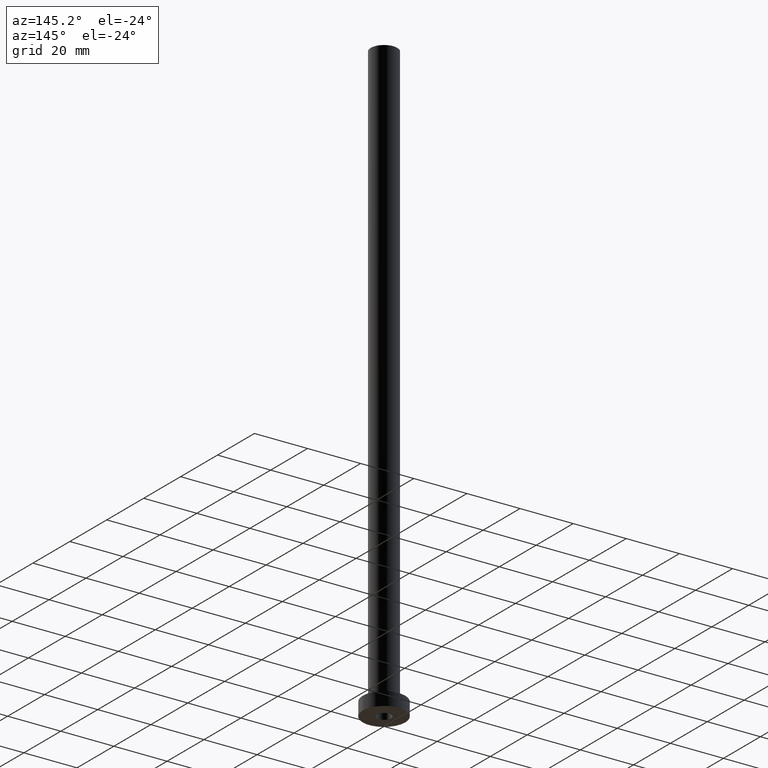
[diagram: clean part render]
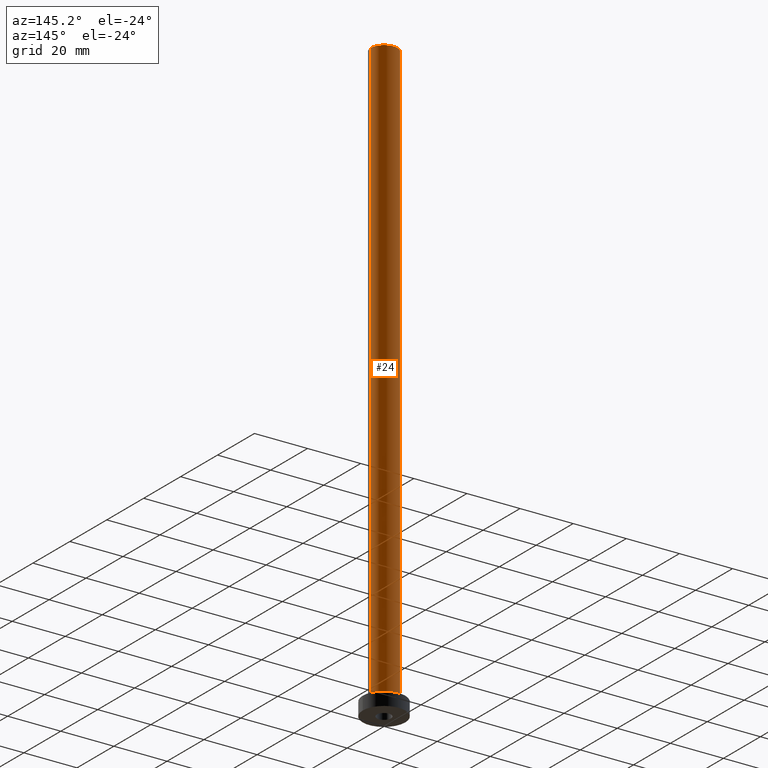
[diagram: same view with one face highlighted and labeled with its STEP entity id]
A machine part, auxiliary view. The second image highlights one B-rep face of the part: STEP entity #24.
In plain terms, the highlighted cylindrical surface (edge-blend (fillet) strip) has radius 5 mm, axis along (-0, -0, -1).
Its self-contained STEP definition (entity closure, byte-faithful):
#8 = DIRECTION ( 'NONE',  ( -0.000000000000000000, -0.000000000000000000, -1.000000000000000000 ) ) ;
#10 = CYLINDRICAL_SURFACE ( 'NONE', #221, 5.000000000000000000 ) ;
#18 = EDGE_CURVE ( 'NONE', #355, #313, #265, .T. ) ;
#21 = AXIS2_PLACEMENT_3D ( 'NONE', #437, #405, #190 ) ;
#24 = ADVANCED_FACE ( 'NONE', ( #118 ), #10, .T. ) ;
#46 = DIRECTION ( 'NONE',  ( -0.000000000000000000, -0.000000000000000000, -1.000000000000000000 ) ) ;
#52 = LINE ( 'NONE', #186, #103 ) ;
#67 = VERTEX_POINT ( 'NONE', #363 ) ;
#71 = CARTESIAN_POINT ( 'NONE',  ( -5.000000000000000000, 0.000000000000000000, 5.500000000000005329 ) ) ;
#78 = CARTESIAN_POINT ( 'NONE',  ( -5.000000000000000000, 0.000000000000000000, 225.0000000000000000 ) ) ;
#92 = EDGE_CURVE ( 'NONE', #419, #67, #52, .T. ) ;
#103 = VECTOR ( 'NONE', #46, 1000.000000000000000 ) ;
#118 = FACE_OUTER_BOUND ( 'NONE', #181, .T. ) ;
#122 = CARTESIAN_POINT ( 'NONE',  ( 0.000000000000000000, 0.000000000000000000, 225.0000000000000000 ) ) ;
#135 = EDGE_CURVE ( 'NONE', #67, #313, #208, .T. ) ;
#152 = DIRECTION ( 'NONE',  ( -1.000000000000000000, 0.000000000000000000, 0.000000000000000000 ) ) ;
#164 = AXIS2_PLACEMENT_3D ( 'NONE', #178, #215, #392 ) ;
#178 = CARTESIAN_POINT ( 'NONE',  ( 0.000000000000000000, 0.000000000000000000, 225.0000000000000000 ) ) ;
#181 = EDGE_LOOP ( 'NONE', ( #359, #247, #451, #319 ) ) ;
#186 = CARTESIAN_POINT ( 'NONE',  ( 5.000000000000000000, 6.123233995736766282E-16, 225.0000000000000000 ) ) ;
#190 = DIRECTION ( 'NONE',  ( 1.000000000000000000, 0.000000000000000000, 0.000000000000000000 ) ) ;
#208 = CIRCLE ( 'NONE', #21, 5.000000000000000000 ) ;
#215 = DIRECTION ( 'NONE',  ( 0.000000000000000000, 0.000000000000000000, 1.000000000000000000 ) ) ;
#221 = AXIS2_PLACEMENT_3D ( 'NONE', #122, #290, #152 ) ;
#247 = ORIENTED_EDGE ( 'NONE', *, *, #92, .T. ) ;
#250 = CARTESIAN_POINT ( 'NONE',  ( -5.000000000000000000, 0.000000000000000000, 225.0000000000000000 ) ) ;
#265 = LINE ( 'NONE', #78, #334 ) ;
#282 = CARTESIAN_POINT ( 'NONE',  ( 5.000000000000000000, 6.123233995736766282E-16, 225.0000000000000000 ) ) ;
#290 = DIRECTION ( 'NONE',  ( -0.000000000000000000, -0.000000000000000000, -1.000000000000000000 ) ) ;
#313 = VERTEX_POINT ( 'NONE', #71 ) ;
#319 = ORIENTED_EDGE ( 'NONE', *, *, #18, .F. ) ;
#334 = VECTOR ( 'NONE', #8, 1000.000000000000000 ) ;
#355 = VERTEX_POINT ( 'NONE', #250 ) ;
#359 = ORIENTED_EDGE ( 'NONE', *, *, #430, .F. ) ;
#363 = CARTESIAN_POINT ( 'NONE',  ( 5.000000000000000000, 6.123233995736766282E-16, 5.500000000000005329 ) ) ;
#392 = DIRECTION ( 'NONE',  ( 1.000000000000000000, 0.000000000000000000, 0.000000000000000000 ) ) ;
#405 = DIRECTION ( 'NONE',  ( 0.000000000000000000, 0.000000000000000000, 1.000000000000000000 ) ) ;
#419 = VERTEX_POINT ( 'NONE', #282 ) ;
#430 = EDGE_CURVE ( 'NONE', #419, #355, #443, .T. ) ;
#437 = CARTESIAN_POINT ( 'NONE',  ( 0.000000000000000000, 0.000000000000000000, 5.500000000000005329 ) ) ;
#443 = CIRCLE ( 'NONE', #164, 5.000000000000000000 ) ;
#451 = ORIENTED_EDGE ( 'NONE', *, *, #135, .T. ) ;